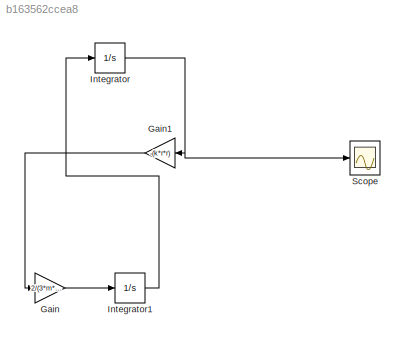
MODEL slx_b163562ccea8
KIND model
CONFIG AbsTol = auto
CONFIG EnableMultiTasking = off
CONFIG FixedStep = auto
CONFIG MaxStep = auto
CONFIG MinStep = auto
CONFIG RelTol = 1e-3
CONFIG SampleTimeConstraint = Unconstrained
CONFIG SolverName = VariableStepAuto
CONFIG StartTime = 0.0
CONFIG StopTime = 10.0
BLOCK [Gain] Gain
  Gain = 2/(3*m*r*r)
BLOCK [Gain] Gain1
  Gain = -(k*r*r)
  NameLocation = top
BLOCK [Integrator] Integrator
BLOCK [Integrator] Integrator1
  InitialCondition = 2
BLOCK [Scope] Scope
  Floating = off
  NumInputPorts = 1
  ScopeSpecificationString = Simulink.scopes.TimeScopeBlockCfg('CurrentConfiguration', extmgr.ConfigurationSet(extmgr.Configuration('Core','General UI',true),extmgr.Configuration('Core','Source UI',true),extmgr.Configuration('Sources','WiredSimulink',true),extmgr.Configuration('Visuals','Time Domain',true,'SerializedDisplays',{struct('MinYLimReal','-0.9676','MaxYLimReal','0.96806','YLabelReal','','MinYLimMag','0.00000','MaxYL...<+1611ch>
LINE Gain1:1 -> Gain:1
LINE Gain:1 -> Integrator1:1
LINE Integrator1:1 -> Integrator:1
NET Integrator:1 -> Gain1:1, Scope:1
note: NET lines group one-source signal fan-out (src -> all destinations, sorted); 1:1 wires keep LINE
